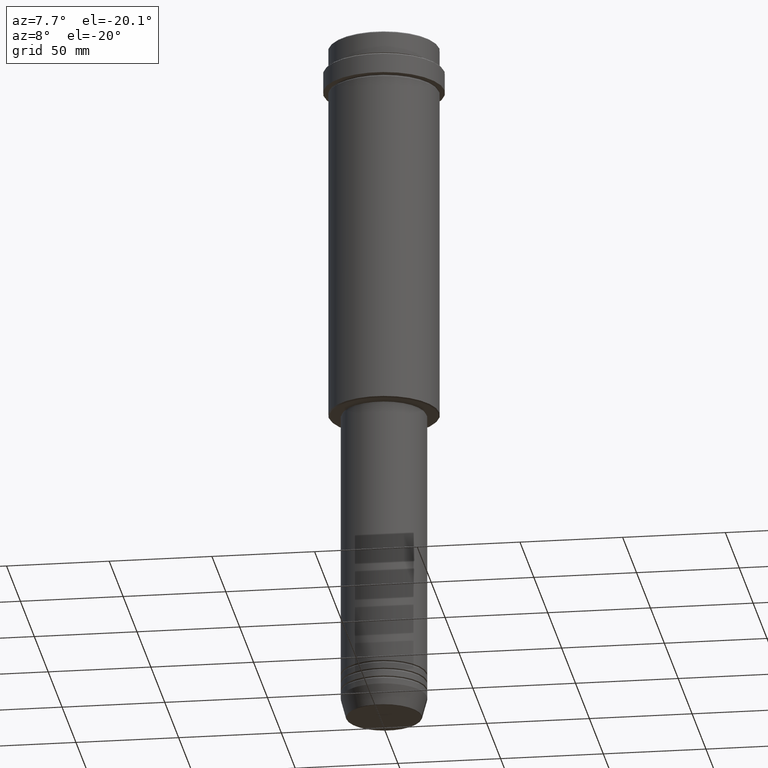
[diagram: clean part render]
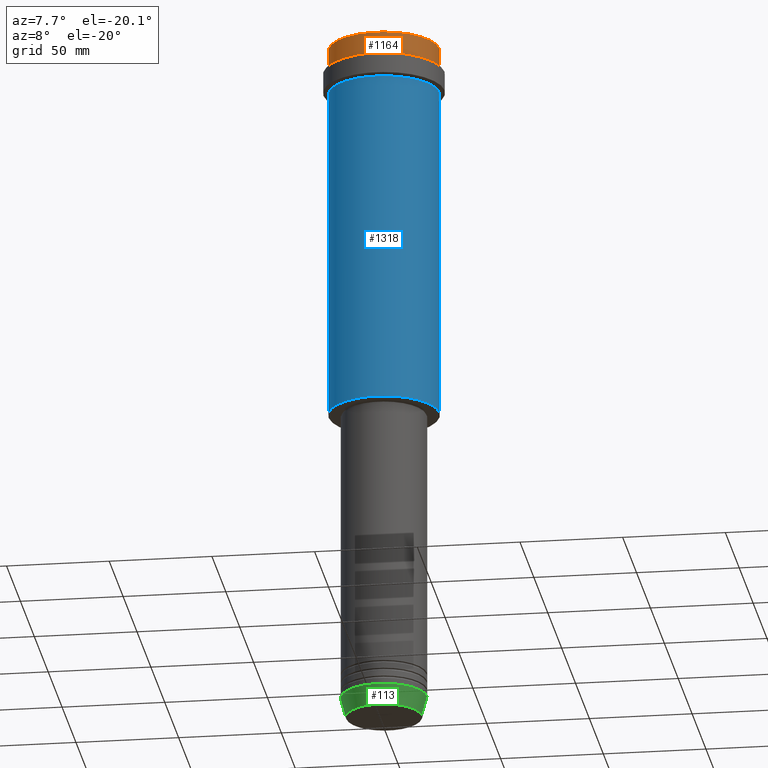
[diagram: same view with three faces highlighted in distinct colors, each labeled with its STEP entity id]
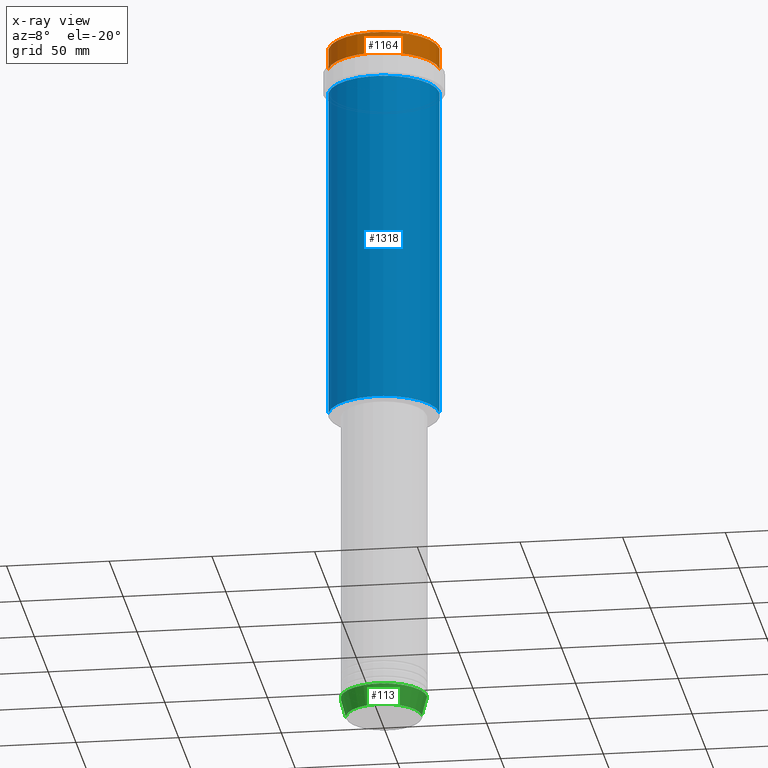
[diagram: x-ray of the same camera — body ghosted, the three highlighted faces saturated]
A machine part, auxiliary view with three faces highlighted in distinct colors.
The next image is the same camera in x-ray (body ghosted, the three faces saturated) — at least one of them is partly hidden behind the body in this view.
Their STEP definitions:

[orange] entity #1164 — the highlighted cylindrical surface (partial cylindrical patch) has radius 27 mm, axis along (-0, -0, 1).
#2 = CARTESIAN_POINT ( 'NONE',  ( -27.00000000000000355, 3.306546357697854128E-15, -11.00000000000000178 ) ) ;
#4 = CIRCLE ( 'NONE', #800, 27.00000000000000355 ) ;
#25 = CARTESIAN_POINT ( 'NONE',  ( 0.000000000000000000, 0.000000000000000000, -0.4999999999999241163 ) ) ;
#29 = VECTOR ( 'NONE', #766, 1000.000000000000000 ) ;
#59 = DIRECTION ( 'NONE',  ( 1.000000000000000000, 0.000000000000000000, 0.000000000000000000 ) ) ;
#164 = DIRECTION ( 'NONE',  ( -0.000000000000000000, -0.000000000000000000, 1.000000000000000000 ) ) ;
#175 = VERTEX_POINT ( 'NONE', #919 ) ;
#244 = EDGE_CURVE ( 'NONE', #1327, #175, #4, .T. ) ;
#287 = LINE ( 'NONE', #724, #1406 ) ;
#299 = VERTEX_POINT ( 'NONE', #1283 ) ;
#327 = CIRCLE ( 'NONE', #1287, 27.00000000000000355 ) ;
#362 = ORIENTED_EDGE ( 'NONE', *, *, #1204, .T. ) ;
#387 = EDGE_LOOP ( 'NONE', ( #529, #551, #362, #768 ) ) ;
#423 = VERTEX_POINT ( 'NONE', #655 ) ;
#459 = DIRECTION ( 'NONE',  ( 1.000000000000000000, 0.000000000000000000, 0.000000000000000000 ) ) ;
#517 = DIRECTION ( 'NONE',  ( -0.000000000000000000, -0.000000000000000000, 1.000000000000000000 ) ) ;
#529 = ORIENTED_EDGE ( 'NONE', *, *, #793, .F. ) ;
#551 = ORIENTED_EDGE ( 'NONE', *, *, #244, .T. ) ;
#651 = AXIS2_PLACEMENT_3D ( 'NONE', #709, #164, #59 ) ;
#655 = CARTESIAN_POINT ( 'NONE',  ( -27.00000000000000355, 3.306546357697854128E-15, -0.4999999999999241163 ) ) ;
#709 = CARTESIAN_POINT ( 'NONE',  ( 0.000000000000000000, 0.000000000000000000, 0.000000000000000000 ) ) ;
#724 = CARTESIAN_POINT ( 'NONE',  ( 27.00000000000000355, 0.000000000000000000, 0.000000000000000000 ) ) ;
#726 = DIRECTION ( 'NONE',  ( 1.000000000000000000, 0.000000000000000000, 0.000000000000000000 ) ) ;
#731 = CYLINDRICAL_SURFACE ( 'NONE', #651, 27.00000000000000355 ) ;
#745 = DIRECTION ( 'NONE',  ( -0.000000000000000000, -0.000000000000000000, 1.000000000000000000 ) ) ;
#766 = DIRECTION ( 'NONE',  ( -0.000000000000000000, -0.000000000000000000, 1.000000000000000000 ) ) ;
#768 = ORIENTED_EDGE ( 'NONE', *, *, #1042, .T. ) ;
#793 = EDGE_CURVE ( 'NONE', #1327, #423, #1181, .T. ) ;
#800 = AXIS2_PLACEMENT_3D ( 'NONE', #1050, #517, #726 ) ;
#919 = CARTESIAN_POINT ( 'NONE',  ( 27.00000000000000355, 0.000000000000000000, -11.00000000000000178 ) ) ;
#1042 = EDGE_CURVE ( 'NONE', #299, #423, #327, .T. ) ;
#1050 = CARTESIAN_POINT ( 'NONE',  ( 0.000000000000000000, 0.000000000000000000, -11.00000000000000178 ) ) ;
#1077 = CARTESIAN_POINT ( 'NONE',  ( -27.00000000000000355, 3.306546357697854128E-15, 0.000000000000000000 ) ) ;
#1164 = ADVANCED_FACE ( 'NONE', ( #1172 ), #731, .T. ) ;
#1172 = FACE_OUTER_BOUND ( 'NONE', #387, .T. ) ;
#1181 = LINE ( 'NONE', #1077, #29 ) ;
#1204 = EDGE_CURVE ( 'NONE', #175, #299, #287, .T. ) ;
#1283 = CARTESIAN_POINT ( 'NONE',  ( 27.00000000000000355, 0.000000000000000000, -0.4999999999999241163 ) ) ;
#1287 = AXIS2_PLACEMENT_3D ( 'NONE', #25, #1329, #459 ) ;
#1327 = VERTEX_POINT ( 'NONE', #2 ) ;
#1329 = DIRECTION ( 'NONE',  ( 0.000000000000000000, 0.000000000000000000, -1.000000000000000000 ) ) ;
#1406 = VECTOR ( 'NONE', #745, 1000.000000000000000 ) ;

[blue] entity #1318 — the highlighted cylindrical surface (partial cylindrical patch) has radius 27 mm, axis along (-0, -0, 1).
#108 = DIRECTION ( 'NONE',  ( 1.000000000000000000, 0.000000000000000000, 0.000000000000000000 ) ) ;
#109 = CARTESIAN_POINT ( 'NONE',  ( 0.000000000000000000, 0.000000000000000000, -23.00000000000001421 ) ) ;
#179 = DIRECTION ( 'NONE',  ( -0.000000000000000000, -0.000000000000000000, 1.000000000000000000 ) ) ;
#280 = AXIS2_PLACEMENT_3D ( 'NONE', #680, #796, #995 ) ;
#313 = DIRECTION ( 'NONE',  ( 1.000000000000000000, 0.000000000000000000, 0.000000000000000000 ) ) ;
#336 = CYLINDRICAL_SURFACE ( 'NONE', #806, 27.00000000000000355 ) ;
#358 = CARTESIAN_POINT ( 'NONE',  ( -27.00000000000000355, 3.306546357697854128E-15, -187.5000000000000568 ) ) ;
#374 = VERTEX_POINT ( 'NONE', #1067 ) ;
#401 = LINE ( 'NONE', #1273, #537 ) ;
#408 = EDGE_CURVE ( 'NONE', #1368, #374, #1020, .T. ) ;
#487 = CIRCLE ( 'NONE', #280, 27.00000000000000355 ) ;
#502 = VERTEX_POINT ( 'NONE', #358 ) ;
#511 = LINE ( 'NONE', #1154, #780 ) ;
#537 = VECTOR ( 'NONE', #838, 1000.000000000000000 ) ;
#572 = CARTESIAN_POINT ( 'NONE',  ( 27.00000000000000355, 0.000000000000000000, -187.5000000000000568 ) ) ;
#579 = AXIS2_PLACEMENT_3D ( 'NONE', #109, #889, #313 ) ;
#649 = EDGE_CURVE ( 'NONE', #502, #1368, #511, .T. ) ;
#658 = EDGE_LOOP ( 'NONE', ( #1118, #1365, #1190, #671 ) ) ;
#671 = ORIENTED_EDGE ( 'NONE', *, *, #408, .F. ) ;
#680 = CARTESIAN_POINT ( 'NONE',  ( 0.000000000000000000, 0.000000000000000000, -187.5000000000000568 ) ) ;
#769 = FACE_OUTER_BOUND ( 'NONE', #658, .T. ) ;
#774 = CARTESIAN_POINT ( 'NONE',  ( 0.000000000000000000, 0.000000000000000000, 0.000000000000000000 ) ) ;
#780 = VECTOR ( 'NONE', #179, 1000.000000000000000 ) ;
#796 = DIRECTION ( 'NONE',  ( -0.000000000000000000, -0.000000000000000000, 1.000000000000000000 ) ) ;
#806 = AXIS2_PLACEMENT_3D ( 'NONE', #774, #1208, #108 ) ;
#838 = DIRECTION ( 'NONE',  ( -0.000000000000000000, -0.000000000000000000, 1.000000000000000000 ) ) ;
#889 = DIRECTION ( 'NONE',  ( -0.000000000000000000, -0.000000000000000000, 1.000000000000000000 ) ) ;
#993 = EDGE_CURVE ( 'NONE', #502, #1417, #487, .T. ) ;
#995 = DIRECTION ( 'NONE',  ( -1.000000000000000000, 0.000000000000000000, 0.000000000000000000 ) ) ;
#1020 = CIRCLE ( 'NONE', #579, 27.00000000000000355 ) ;
#1067 = CARTESIAN_POINT ( 'NONE',  ( 27.00000000000000355, 0.000000000000000000, -23.00000000000001421 ) ) ;
#1118 = ORIENTED_EDGE ( 'NONE', *, *, #649, .F. ) ;
#1123 = EDGE_CURVE ( 'NONE', #1417, #374, #401, .T. ) ;
#1154 = CARTESIAN_POINT ( 'NONE',  ( -27.00000000000000355, 3.306546357697854128E-15, 0.000000000000000000 ) ) ;
#1190 = ORIENTED_EDGE ( 'NONE', *, *, #1123, .T. ) ;
#1208 = DIRECTION ( 'NONE',  ( -0.000000000000000000, -0.000000000000000000, 1.000000000000000000 ) ) ;
#1231 = CARTESIAN_POINT ( 'NONE',  ( -27.00000000000000355, 3.306546357697854128E-15, -23.00000000000001421 ) ) ;
#1273 = CARTESIAN_POINT ( 'NONE',  ( 27.00000000000000355, 0.000000000000000000, 0.000000000000000000 ) ) ;
#1318 = ADVANCED_FACE ( 'NONE', ( #769 ), #336, .T. ) ;
#1365 = ORIENTED_EDGE ( 'NONE', *, *, #993, .T. ) ;
#1368 = VERTEX_POINT ( 'NONE', #1231 ) ;
#1417 = VERTEX_POINT ( 'NONE', #572 ) ;

[green] entity #113 — the highlighted conical surface has half-angle 15 deg.
#13 = EDGE_CURVE ( 'NONE', #1053, #1389, #533, .T. ) ;
#18 = CARTESIAN_POINT ( 'NONE',  ( 21.00000000000000000, 0.000000000000000000, -333.0000000000000000 ) ) ;
#67 = ORIENTED_EDGE ( 'NONE', *, *, #1150, .T. ) ;
#75 = CARTESIAN_POINT ( 'NONE',  ( 21.00000000000000000, 0.000000000000000000, -333.0000000000000000 ) ) ;
#113 = ADVANCED_FACE ( 'NONE', ( #1233 ), #482, .T. ) ;
#149 = CARTESIAN_POINT ( 'NONE',  ( -21.00000000000000000, 2.571758278209441661E-15, -333.0000000000000000 ) ) ;
#176 = EDGE_CURVE ( 'NONE', #225, #1053, #274, .T. ) ;
#225 = VERTEX_POINT ( 'NONE', #938 ) ;
#230 = DIRECTION ( 'NONE',  ( 1.000000000000000000, 0.000000000000000000, 0.000000000000000000 ) ) ;
#274 = LINE ( 'NONE', #711, #887 ) ;
#276 = CIRCLE ( 'NONE', #710, 18.41980749484383750 ) ;
#310 = EDGE_CURVE ( 'NONE', #225, #507, #276, .T. ) ;
#429 = CARTESIAN_POINT ( 'NONE',  ( 0.000000000000000000, 0.000000000000000000, -333.0000000000000000 ) ) ;
#455 = CARTESIAN_POINT ( 'NONE',  ( 0.000000000000000000, 0.000000000000000000, -342.6294095225512706 ) ) ;
#482 = CONICAL_SURFACE ( 'NONE', #1162, 21.00000000000000000, 0.2617993877991499074 ) ;
#507 = VERTEX_POINT ( 'NONE', #694 ) ;
#531 = ORIENTED_EDGE ( 'NONE', *, *, #310, .T. ) ;
#533 = CIRCLE ( 'NONE', #846, 21.00000000000000000 ) ;
#685 = DIRECTION ( 'NONE',  ( -0.000000000000000000, -0.000000000000000000, 1.000000000000000000 ) ) ;
#694 = CARTESIAN_POINT ( 'NONE',  ( 18.41980749484383750, 0.000000000000000000, -342.6294095225512706 ) ) ;
#698 = ORIENTED_EDGE ( 'NONE', *, *, #13, .F. ) ;
#710 = AXIS2_PLACEMENT_3D ( 'NONE', #455, #1409, #1195 ) ;
#711 = CARTESIAN_POINT ( 'NONE',  ( -21.00000000000000000, 2.571758278209441661E-15, -333.0000000000000000 ) ) ;
#746 = EDGE_LOOP ( 'NONE', ( #1153, #531, #67, #698 ) ) ;
#791 = CARTESIAN_POINT ( 'NONE',  ( 0.000000000000000000, 0.000000000000000000, -333.0000000000000000 ) ) ;
#846 = AXIS2_PLACEMENT_3D ( 'NONE', #429, #863, #992 ) ;
#863 = DIRECTION ( 'NONE',  ( -0.000000000000000000, -0.000000000000000000, 1.000000000000000000 ) ) ;
#887 = VECTOR ( 'NONE', #1145, 1000.000000000000114 ) ;
#938 = CARTESIAN_POINT ( 'NONE',  ( -18.41980749484383750, 2.413767053578267458E-15, -342.6294095225512706 ) ) ;
#992 = DIRECTION ( 'NONE',  ( 1.000000000000000000, 0.000000000000000000, 0.000000000000000000 ) ) ;
#1053 = VERTEX_POINT ( 'NONE', #149 ) ;
#1065 = DIRECTION ( 'NONE',  ( 0.2588190451025211836, 0.000000000000000000, 0.9659258262890680902 ) ) ;
#1145 = DIRECTION ( 'NONE',  ( -0.2588190451025211836, 3.169619151431770488E-17, 0.9659258262890680902 ) ) ;
#1150 = EDGE_CURVE ( 'NONE', #507, #1389, #1251, .T. ) ;
#1153 = ORIENTED_EDGE ( 'NONE', *, *, #176, .F. ) ;
#1162 = AXIS2_PLACEMENT_3D ( 'NONE', #791, #685, #230 ) ;
#1195 = DIRECTION ( 'NONE',  ( 1.000000000000000000, 0.000000000000000000, 0.000000000000000000 ) ) ;
#1233 = FACE_OUTER_BOUND ( 'NONE', #746, .T. ) ;
#1251 = LINE ( 'NONE', #75, #1324 ) ;
#1324 = VECTOR ( 'NONE', #1065, 1000.000000000000114 ) ;
#1389 = VERTEX_POINT ( 'NONE', #18 ) ;
#1409 = DIRECTION ( 'NONE',  ( -0.000000000000000000, -0.000000000000000000, 1.000000000000000000 ) ) ;